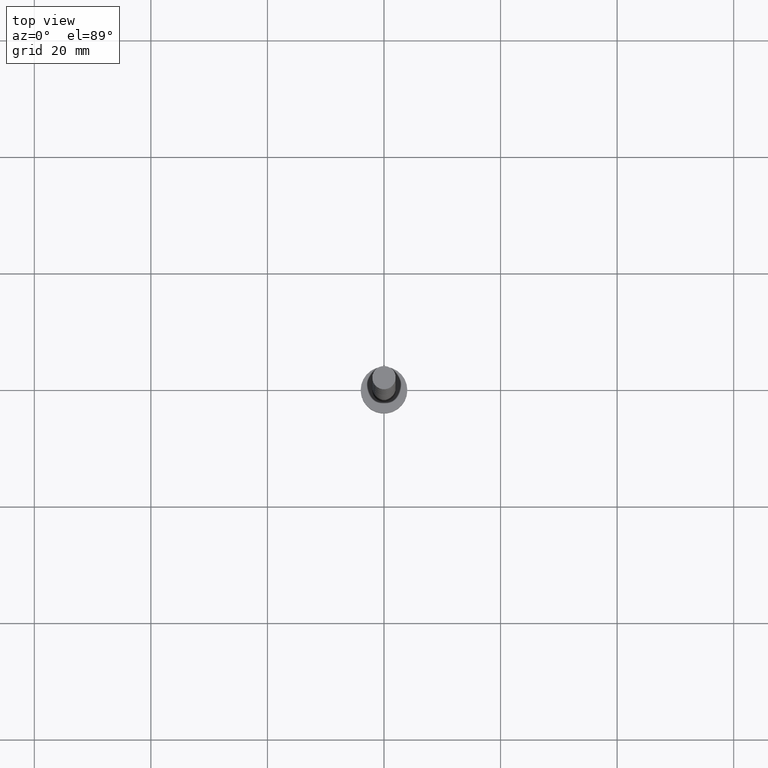
[diagram: clean part render]
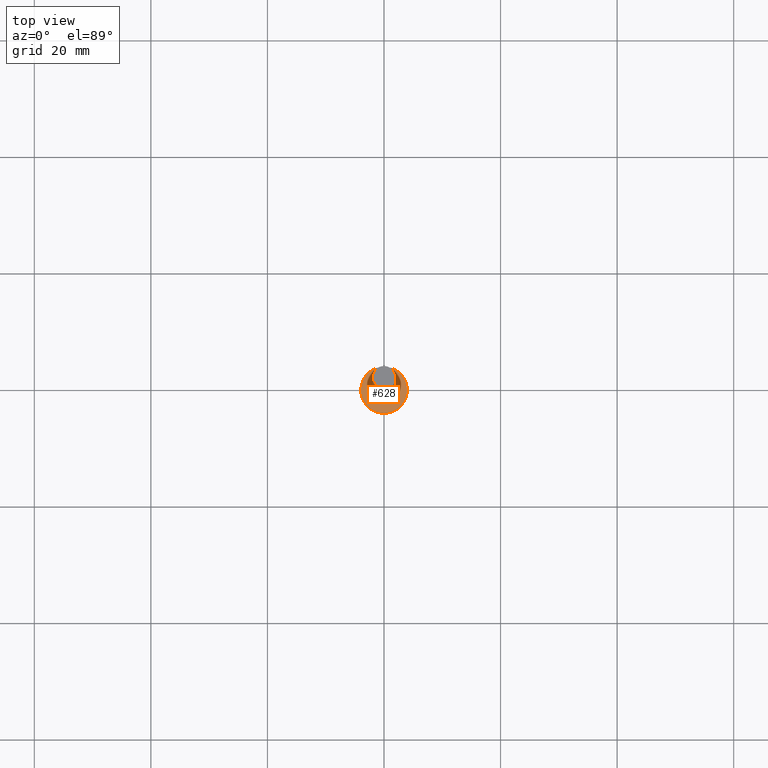
[diagram: same view with one face highlighted and labeled with its STEP entity id]
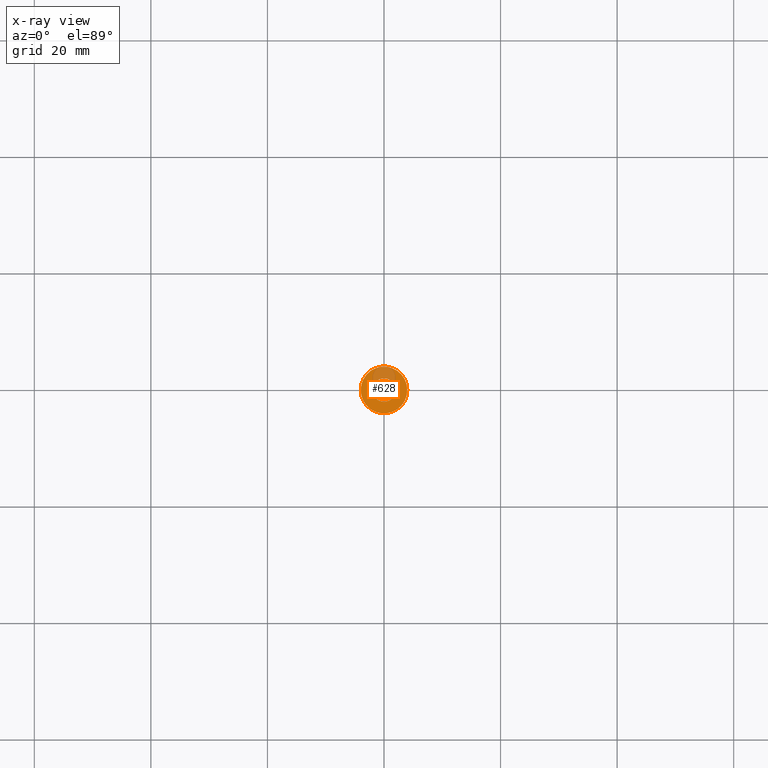
[diagram: x-ray of the same camera — body ghosted, the highlighted face saturated]
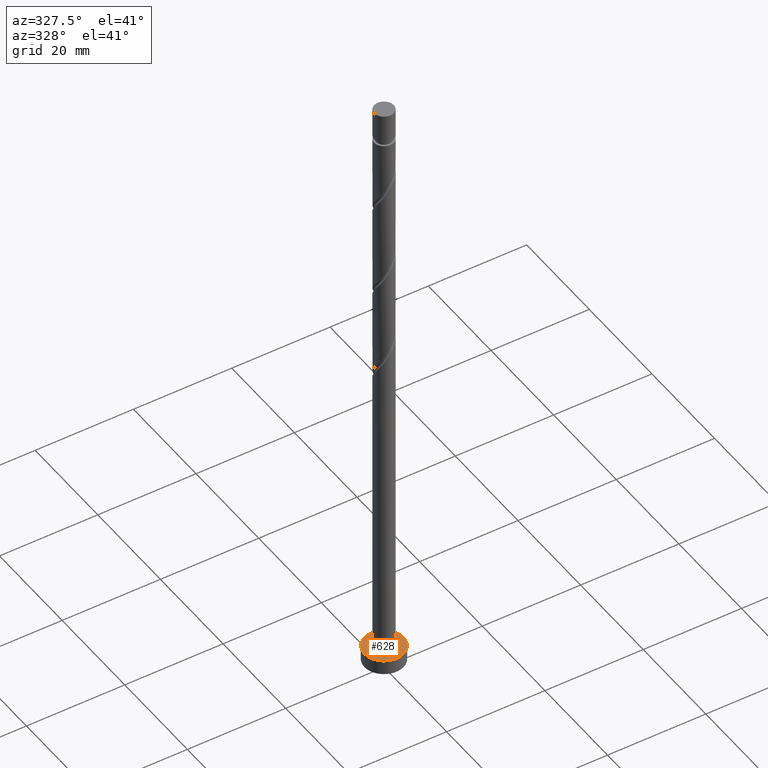
[diagram: same view with one face highlighted and labeled with its STEP entity id]
A machine part, top view. The second image highlights one B-rep face of the part: STEP entity #628.
The next image is the same camera in x-ray: the body ghosted, the highlighted face saturated — about 22% of this face is hidden behind the body in this view.
A second angle (auxiliary view) of the same face is appended — the face is thin or edge-on in the first view.
In plain terms, the highlighted planar face has unit normal (0, 0, 1).
Its self-contained STEP definition (entity closure, byte-faithful):
#20 = VERTEX_POINT ( 'NONE', #676 ) ;
#87 = DIRECTION ( 'NONE',  ( 1.000000000000000000, 0.000000000000000000, 0.000000000000000000 ) ) ;
#125 = CARTESIAN_POINT ( 'NONE',  ( 2.000000000000000000, 2.449293598294705921E-16, 3.000000000000000000 ) ) ;
#228 = ORIENTED_EDGE ( 'NONE', *, *, #230, .F. ) ;
#230 = EDGE_CURVE ( 'NONE', #1446, #1297, #1514, .T. ) ;
#269 = ORIENTED_EDGE ( 'NONE', *, *, #1191, .T. ) ;
#303 = CARTESIAN_POINT ( 'NONE',  ( 0.000000000000000000, 0.000000000000000000, 3.000000000000000000 ) ) ;
#320 = CIRCLE ( 'NONE', #854, 2.000000000000000000 ) ;
#398 = EDGE_LOOP ( 'NONE', ( #1269, #228 ) ) ;
#449 = AXIS2_PLACEMENT_3D ( 'NONE', #1053, #685, #87 ) ;
#487 = VERTEX_POINT ( 'NONE', #1493 ) ;
#509 = DIRECTION ( 'NONE',  ( 1.000000000000000000, 0.000000000000000000, 0.000000000000000000 ) ) ;
#574 = FACE_OUTER_BOUND ( 'NONE', #1405, .T. ) ;
#609 = CARTESIAN_POINT ( 'NONE',  ( 0.000000000000000000, 0.000000000000000000, 3.000000000000000000 ) ) ;
#628 = ADVANCED_FACE ( 'NONE', ( #1043, #574 ), #1167, .T. ) ;
#667 = DIRECTION ( 'NONE',  ( 1.000000000000000000, 0.000000000000000000, -0.000000000000000000 ) ) ;
#676 = CARTESIAN_POINT ( 'NONE',  ( 4.000000000000000000, 4.898587196589412829E-16, 3.000000000000000000 ) ) ;
#685 = DIRECTION ( 'NONE',  ( 0.000000000000000000, 0.000000000000000000, 1.000000000000000000 ) ) ;
#799 = AXIS2_PLACEMENT_3D ( 'NONE', #303, #957, #833 ) ;
#823 = AXIS2_PLACEMENT_3D ( 'NONE', #963, #1115, #509 ) ;
#833 = DIRECTION ( 'NONE',  ( 1.000000000000000000, 0.000000000000000000, 0.000000000000000000 ) ) ;
#854 = AXIS2_PLACEMENT_3D ( 'NONE', #609, #1094, #1557 ) ;
#897 = ORIENTED_EDGE ( 'NONE', *, *, #1177, .T. ) ;
#957 = DIRECTION ( 'NONE',  ( 0.000000000000000000, 0.000000000000000000, 1.000000000000000000 ) ) ;
#963 = CARTESIAN_POINT ( 'NONE',  ( 0.000000000000000000, 0.000000000000000000, 3.000000000000000000 ) ) ;
#1043 = FACE_BOUND ( 'NONE', #398, .T. ) ;
#1053 = CARTESIAN_POINT ( 'NONE',  ( 0.000000000000000000, 0.000000000000000000, 3.000000000000000000 ) ) ;
#1094 = DIRECTION ( 'NONE',  ( 0.000000000000000000, 0.000000000000000000, 1.000000000000000000 ) ) ;
#1115 = DIRECTION ( 'NONE',  ( 0.000000000000000000, 0.000000000000000000, 1.000000000000000000 ) ) ;
#1135 = CIRCLE ( 'NONE', #799, 4.000000000000000000 ) ;
#1167 = PLANE ( 'NONE',  #1411 ) ;
#1173 = DIRECTION ( 'NONE',  ( 0.000000000000000000, 0.000000000000000000, 1.000000000000000000 ) ) ;
#1177 = EDGE_CURVE ( 'NONE', #487, #20, #1358, .T. ) ;
#1191 = EDGE_CURVE ( 'NONE', #20, #487, #1135, .T. ) ;
#1269 = ORIENTED_EDGE ( 'NONE', *, *, #1406, .F. ) ;
#1297 = VERTEX_POINT ( 'NONE', #1464 ) ;
#1358 = CIRCLE ( 'NONE', #449, 4.000000000000000000 ) ;
#1405 = EDGE_LOOP ( 'NONE', ( #897, #269 ) ) ;
#1406 = EDGE_CURVE ( 'NONE', #1297, #1446, #320, .T. ) ;
#1411 = AXIS2_PLACEMENT_3D ( 'NONE', #1529, #1173, #667 ) ;
#1446 = VERTEX_POINT ( 'NONE', #125 ) ;
#1464 = CARTESIAN_POINT ( 'NONE',  ( -2.000000000000000000, 0.000000000000000000, 3.000000000000000000 ) ) ;
#1493 = CARTESIAN_POINT ( 'NONE',  ( -4.000000000000000000, 0.000000000000000000, 3.000000000000000000 ) ) ;
#1514 = CIRCLE ( 'NONE', #823, 2.000000000000000000 ) ;
#1529 = CARTESIAN_POINT ( 'NONE',  ( 0.000000000000000000, 0.000000000000000000, 3.000000000000000000 ) ) ;
#1557 = DIRECTION ( 'NONE',  ( 1.000000000000000000, 0.000000000000000000, 0.000000000000000000 ) ) ;